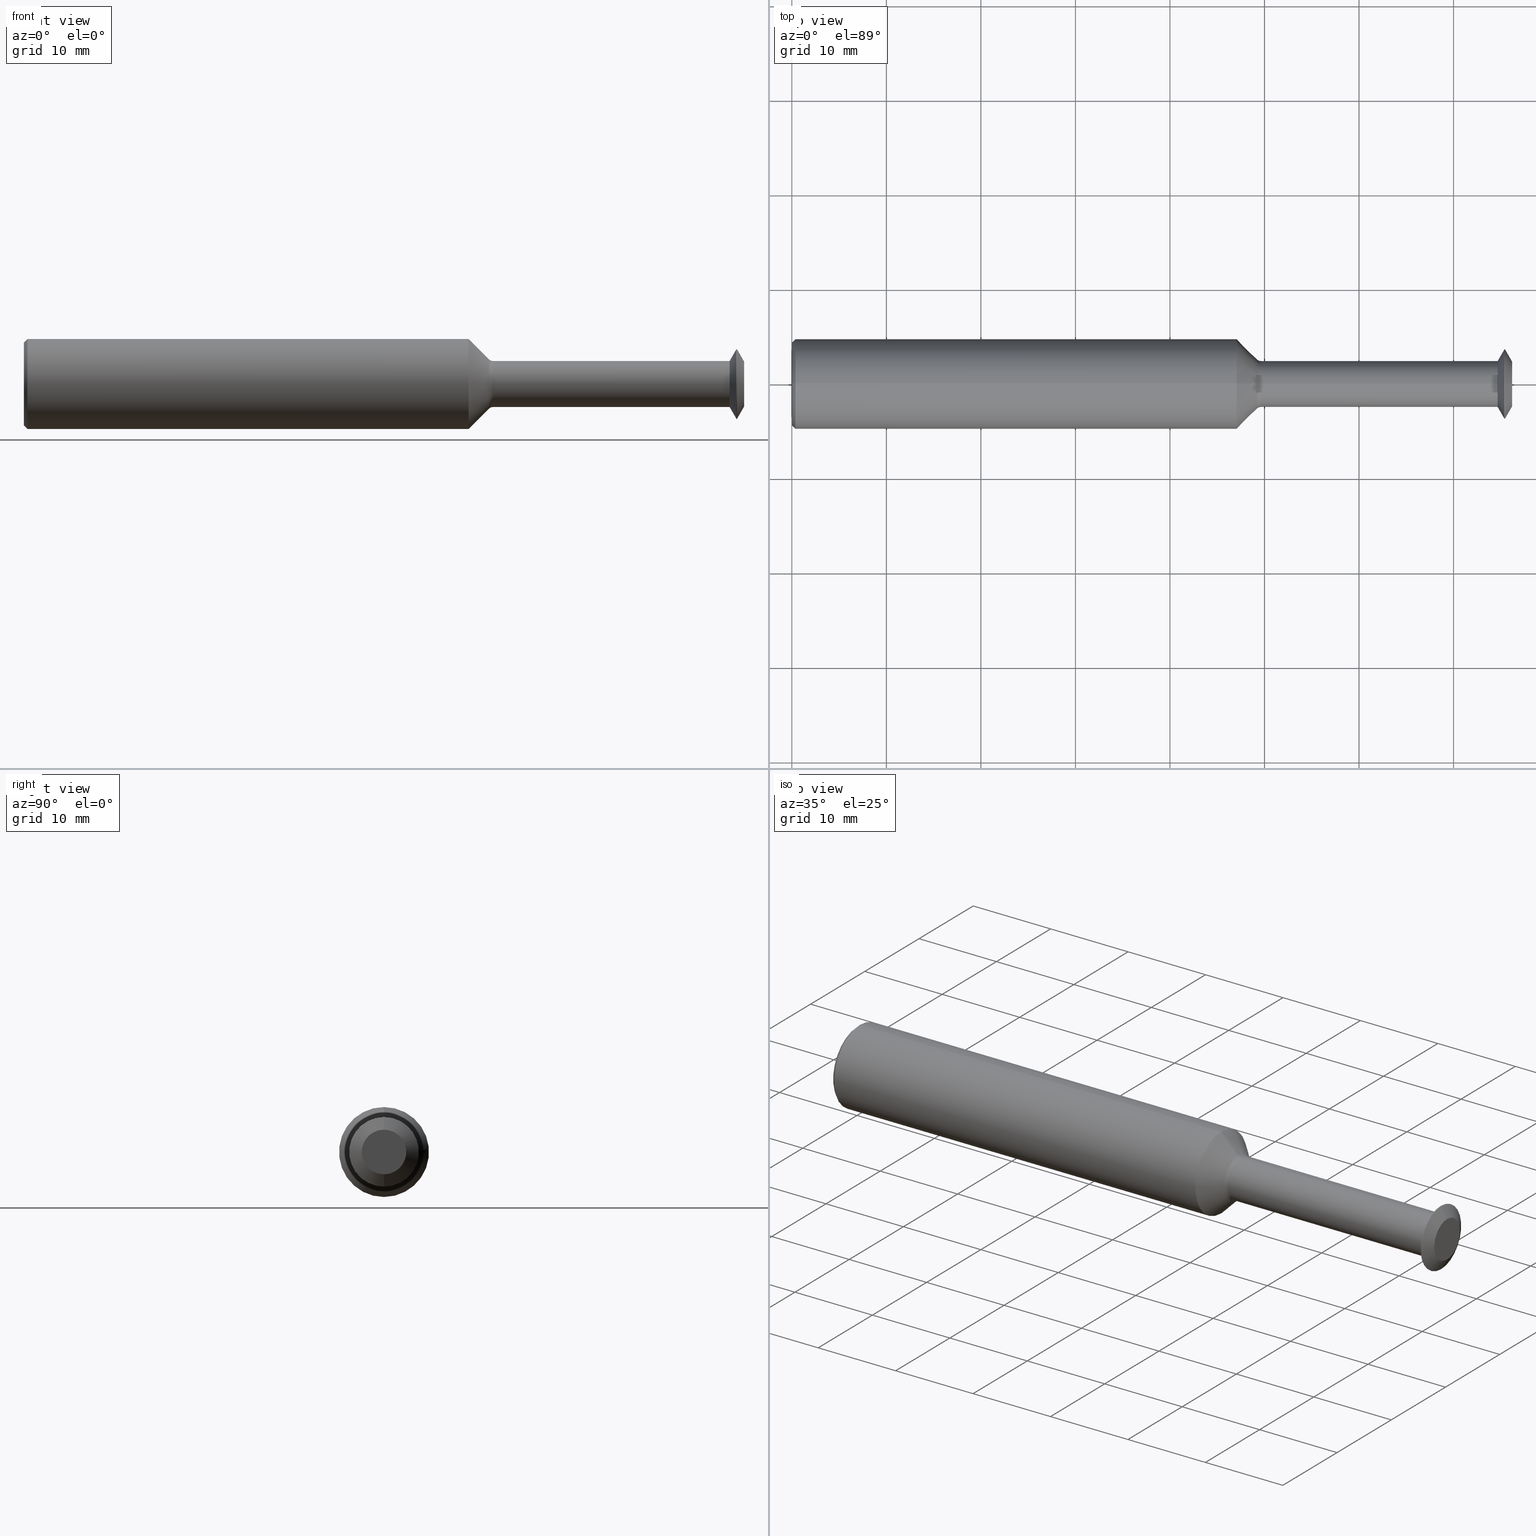
[diagram: canonical four-view strip — front | top / right | iso, engineering-drawing reading convention]
A machine part, canonical four-view strip (front | top / right | iso — engineering-drawing reading convention). The complete STEP part file that produces these views, byte-faithful:
ISO-10303-21;
HEADER;
FILE_DESCRIPTION (( 'STEP AP214' ),
    '1' );
FILE_NAME ('SPTM290L.STEP',
    '2019-04-23T20:26:19',
    ( '' ),
    ( '' ),
    'SwSTEP 2.0',
    'SolidWorks 2018',
    '' );
FILE_SCHEMA (( 'AUTOMOTIVE_DESIGN' ));
ENDSEC;

DATA;
#1 = EDGE_CURVE ( 'NONE', #290, #406, #95, .T. ) ;
#2 = PRESENTATION_STYLE_ASSIGNMENT (( #266 ) ) ;
#3 = CIRCLE ( 'NONE', #486, 0.02500000000000000486 ) ;
#4 =( CONVERSION_BASED_UNIT ( 'INCH', #296 ) LENGTH_UNIT ( ) NAMED_UNIT ( #383 ) );
#5 = DIRECTION ( 'NONE',  ( 1.000000000000000000, 0.0000000000000000000, 0.0000000000000000000 ) ) ;
#6 = CIRCLE ( 'NONE', #171, 0.1873499999999999888 ) ;
#7 = EDGE_CURVE ( 'NONE', #58, #130, #81, .T. ) ;
#8 = EDGE_LOOP ( 'NONE', ( #478, #10, #93, #338 ) ) ;
#9 = DIRECTION ( 'NONE',  ( 0.0000000000000000000, 0.0000000000000000000, -1.000000000000000000 ) ) ;
#10 = ORIENTED_EDGE ( 'NONE', *, *, #246, .T. ) ;
#11 = CARTESIAN_POINT ( 'NONE',  ( 2.967659026713176829, 0.0000000000000000000, 0.0000000000000000000 ) ) ;
#12 = DIRECTION ( 'NONE',  ( 0.0000000000000000000, 0.0000000000000000000, 1.000000000000000000 ) ) ;
#13 = ORIENTED_EDGE ( 'NONE', *, *, #219, .F. ) ;
#14 = CARTESIAN_POINT ( 'NONE',  ( 0.0000000000000000000, 0.0000000000000000000, 0.0000000000000000000 ) ) ;
#15 = FACE_OUTER_BOUND ( 'NONE', #388, .T. ) ;
#16 = CARTESIAN_POINT ( 'NONE',  ( 0.0000000000000000000, 0.0000000000000000000, 0.0000000000000000000 ) ) ;
#17 = AXIS2_PLACEMENT_3D ( 'NONE', #186, #305, #142 ) ;
#18 = DIRECTION ( 'NONE',  ( -1.000000000000000000, -0.0000000000000000000, -0.0000000000000000000 ) ) ;
#19 = DIRECTION ( 'NONE',  ( -1.000000000000000000, -0.0000000000000000000, -0.0000000000000000000 ) ) ;
#20 = CIRCLE ( 'NONE', #155, 0.1449999999999994349 ) ;
#21 = EDGE_CURVE ( 'NONE', #366, #236, #378, .T. ) ;
#22 = CYLINDRICAL_SURFACE ( 'NONE', #281, 0.1449999999999994349 ) ;
#23 = CARTESIAN_POINT ( 'NONE',  ( 0.0000000000000000000, 0.0000000000000000000, 0.0000000000000000000 ) ) ;
#24 = CLOSED_SHELL ( 'NONE', ( #157, #135, #150, #111, #32, #66, #175, #161, #143, #100, #126, #77, #83, #162, #48, #182, #176, #87 ) ) ;
#25 = CARTESIAN_POINT ( 'NONE',  ( 3.000000000000000444, 1.138921523207031801E-17, -0.09299999999999945810 ) ) ;
#26 = ORIENTED_EDGE ( 'NONE', *, *, #432, .T. ) ;
#27 = CARTESIAN_POINT ( 'NONE',  ( 1.954264365772504286, 0.0000000000000000000, 0.09599999999999997424 ) ) ;
#28 = PRESENTATION_LAYER_ASSIGNMENT (  '', '', ( #239 ) ) ;
#29 = VECTOR ( 'NONE', #153, 39.37007874015748143 ) ;
#30 = FACE_OUTER_BOUND ( 'NONE', #343, .T. ) ;
#31 = EDGE_LOOP ( 'NONE', ( #110, #358, #375, #309 ) ) ;
#32 = ADVANCED_FACE ( 'NONE', ( #202 ), #470, .T. ) ;
#33 = AXIS2_PLACEMENT_3D ( 'NONE', #382, #208, #499 ) ;
#34 = DIRECTION ( 'NONE',  ( -1.000000000000000000, -0.0000000000000000000, -0.0000000000000000000 ) ) ;
#35 = PRODUCT_DEFINITION_SHAPE ( 'NONE', 'NONE',  #73 ) ;
#36 = AXIS2_PLACEMENT_3D ( 'NONE', #16, #480, #231 ) ;
#37 = ORIENTED_EDGE ( 'NONE', *, *, #497, .T. ) ;
#38 = EDGE_CURVE ( 'NONE', #389, #290, #107, .T. ) ;
#39 = CIRCLE ( 'NONE', #328, 0.1873499999999999888 ) ;
#40 = VERTEX_POINT ( 'NONE', #170 ) ;
#41 = CARTESIAN_POINT ( 'NONE',  ( 1.936586696242840633, 0.0000000000000000000, 0.0000000000000000000 ) ) ;
#42 = ORIENTED_EDGE ( 'NONE', *, *, #132, .F. ) ;
#43 = LENGTH_MEASURE_WITH_UNIT ( LENGTH_MEASURE( 0.02539999999999999897 ), #282 );
#44 = DIRECTION ( 'NONE',  ( -1.000000000000000000, -0.0000000000000000000, -0.0000000000000000000 ) ) ;
#45 = CONICAL_SURFACE ( 'NONE', #51, 0.09299999999999945810, 1.049815545074589407 ) ;
#46 = AXIS2_PLACEMENT_3D ( 'NONE', #448, #275, #164 ) ;
#47 = VERTEX_POINT ( 'NONE', #353 ) ;
#48 = ADVANCED_FACE ( 'NONE', ( #225 ), #331, .T. ) ;
#49 = CARTESIAN_POINT ( 'NONE',  ( 3.000000000000000444, 0.0000000000000000000, 0.0000000000000000000 ) ) ;
#50 = VERTEX_POINT ( 'NONE', #294 ) ;
#51 = AXIS2_PLACEMENT_3D ( 'NONE', #149, #337, #403 ) ;
#52 = DIRECTION ( 'NONE',  ( 1.000000000000000000, 0.0000000000000000000, 0.0000000000000000000 ) ) ;
#53 = CARTESIAN_POINT ( 'NONE',  ( 0.01499999999999953280, 0.0000000000000000000, 0.1873499999999999888 ) ) ;
#54 = VECTOR ( 'NONE', #377, 39.37007874015748143 ) ;
#55 = DIRECTION ( 'NONE',  ( 0.0000000000000000000, 0.0000000000000000000, 1.000000000000000000 ) ) ;
#56 = PRODUCT_CONTEXT ( 'NONE', #461, 'mechanical' ) ;
#57 = CARTESIAN_POINT ( 'NONE',  ( 1.852559026713177293, 0.0000000000000000000, 0.0000000000000000000 ) ) ;
#58 = VERTEX_POINT ( 'NONE', #492 ) ;
#59 = AXIS2_PLACEMENT_3D ( 'NONE', #324, #166, #364 ) ;
#60 = ORIENTED_EDGE ( 'NONE', *, *, #132, .T. ) ;
#61 = DIRECTION ( 'NONE',  ( 1.000000000000000000, 0.0000000000000000000, 0.0000000000000000000 ) ) ;
#62 = EDGE_CURVE ( 'NONE', #72, #406, #392, .T. ) ;
#63 = CIRCLE ( 'NONE', #91, 0.09299999999999945810 ) ;
#64 = ORIENTED_EDGE ( 'NONE', *, *, #468, .T. ) ;
#65 = EDGE_CURVE ( 'NONE', #270, #390, #258, .T. ) ;
#66 = ADVANCED_FACE ( 'NONE', ( #172 ), #481, .T. ) ;
#67 = DIRECTION ( 'NONE',  ( -1.000000000000000000, -0.0000000000000000000, -0.0000000000000000000 ) ) ;
#68 = VERTEX_POINT ( 'NONE', #348 ) ;
#69 = LINE ( 'NONE', #233, #148 ) ;
#70 = DIRECTION ( 'NONE',  ( 0.7071067811865467956, 8.659560562354943952E-17, 0.7071067811865483499 ) ) ;
#71 = FACE_OUTER_BOUND ( 'NONE', #395, .T. ) ;
#72 = VERTEX_POINT ( 'NONE', #319 ) ;
#73 = PRODUCT_DEFINITION ( 'UNKNOWN', '', #121, #248 ) ;
#74 = DIRECTION ( 'NONE',  ( 0.0000000000000000000, 0.0000000000000000000, 1.000000000000000000 ) ) ;
#75 = ORIENTED_EDGE ( 'NONE', *, *, #271, .F. ) ;
#76 = DIRECTION ( 'NONE',  ( -1.000000000000000000, -0.0000000000000000000, -0.0000000000000000000 ) ) ;
#77 = ADVANCED_FACE ( 'NONE', ( #71 ), #359, .T. ) ;
#78 = CARTESIAN_POINT ( 'NONE',  ( 1.936586696242840633, 0.0000000000000000000, 0.1033223304703363571 ) ) ;
#79 = DIRECTION ( 'NONE',  ( 0.0000000000000000000, 0.0000000000000000000, 1.000000000000000000 ) ) ;
#80 = DIRECTION ( 'NONE',  ( -1.000000000000000000, -0.0000000000000000000, -0.0000000000000000000 ) ) ;
#81 = LINE ( 'NONE', #357, #451 ) ;
#82 = DIRECTION ( 'NONE',  ( 0.0000000000000000000, 0.0000000000000000000, 1.000000000000000000 ) ) ;
#83 = ADVANCED_FACE ( 'NONE', ( #487 ), #268, .T. ) ;
#84 = DIRECTION ( 'NONE',  ( -1.000000000000000000, -0.0000000000000000000, -0.0000000000000000000 ) ) ;
#85 = EDGE_LOOP ( 'NONE', ( #289, #64, #314, #288 ) ) ;
#86 = DIRECTION ( 'NONE',  ( -1.000000000000000000, -0.0000000000000000000, -0.0000000000000000000 ) ) ;
#87 = ADVANCED_FACE ( 'NONE', ( #293 ), #441, .T. ) ;
#88 = CARTESIAN_POINT ( 'NONE',  ( 0.0000000000000000000, 2.202527268266516892E-17, 0.1723500000000004195 ) ) ;
#89 = CARTESIAN_POINT ( 'NONE',  ( 1.936586696242840633, 0.0000000000000000000, 0.1033223304703363571 ) ) ;
#90 = FACE_OUTER_BOUND ( 'NONE', #422, .T. ) ;
#91 = AXIS2_PLACEMENT_3D ( 'NONE', #49, #442, #476 ) ;
#92 = DIRECTION ( 'NONE',  ( 0.0000000000000000000, 0.0000000000000000000, -1.000000000000000000 ) ) ;
#93 = ORIENTED_EDGE ( 'NONE', *, *, #322, .F. ) ;
#94 = DIRECTION ( 'NONE',  ( 0.0000000000000000000, 0.0000000000000000000, 1.000000000000000000 ) ) ;
#95 = LINE ( 'NONE', #252, #416 ) ;
#96 = EDGE_CURVE ( 'NONE', #290, #389, #323, .T. ) ;
#97 = DIRECTION ( 'NONE',  ( 0.0000000000000000000, 0.0000000000000000000, 1.000000000000000000 ) ) ;
#98 = TOROIDAL_SURFACE ( 'NONE', #253, 0.1209999999999999826, 0.02499999999999999792 ) ;
#99 = DIRECTION ( 'NONE',  ( -1.000000000000000000, -0.0000000000000000000, -0.0000000000000000000 ) ) ;
#100 = ADVANCED_FACE ( 'NONE', ( #167 ), #45, .T. ) ;
#101 = CARTESIAN_POINT ( 'NONE',  ( 0.01499999999999953280, 0.0000000000000000000, 0.0000000000000000000 ) ) ;
#102 = CARTESIAN_POINT ( 'NONE',  ( 2.939539648039054764, 0.0000000000000000000, 0.0000000000000000000 ) ) ;
#103 = VERTEX_POINT ( 'NONE', #437 ) ;
#104 = DIRECTION ( 'NONE',  ( -0.4977310399126119722, 1.062174661273176374E-16, -0.8673314314075730724 ) ) ;
#105 = VECTOR ( 'NONE', #119, 39.37007874015748143 ) ;
#106 = AXIS2_PLACEMENT_3D ( 'NONE', #127, #67, #318 ) ;
#107 = CIRCLE ( 'NONE', #493, 0.1723500000000004195 ) ;
#108 = DIRECTION ( 'NONE',  ( 0.0000000000000000000, 0.0000000000000000000, -1.000000000000000000 ) ) ;
#109 = AXIS2_PLACEMENT_3D ( 'NONE', #278, #385, #360 ) ;
#110 = ORIENTED_EDGE ( 'NONE', *, *, #322, .T. ) ;
#111 = ADVANCED_FACE ( 'NONE', ( #397 ), #98, .F. ) ;
#112 = PRODUCT ( 'SPTM290L', 'SPTM290L', '', ( #56 ) ) ;
#113 = ORIENTED_EDGE ( 'NONE', *, *, #326, .T. ) ;
#114 = CARTESIAN_POINT ( 'NONE',  ( 0.0000000000000000000, 0.0000000000000000000, 0.1449999999999994349 ) ) ;
#115 = ORIENTED_EDGE ( 'NONE', *, *, #120, .F. ) ;
#116 = EDGE_CURVE ( 'NONE', #270, #366, #141, .T. ) ;
#117 = ORIENTED_EDGE ( 'NONE', *, *, #65, .T. ) ;
#118 = SURFACE_STYLE_FILL_AREA ( #498 ) ;
#119 = DIRECTION ( 'NONE',  ( -1.000000000000000000, -0.0000000000000000000, -0.0000000000000000000 ) ) ;
#120 = EDGE_CURVE ( 'NONE', #390, #103, #277, .T. ) ;
#121 = PRODUCT_DEFINITION_FORMATION_WITH_SPECIFIED_SOURCE ( 'ANY', '', #112, .NOT_KNOWN. ) ;
#122 = CYLINDRICAL_SURFACE ( 'NONE', #36, 0.1449999999999994349 ) ;
#123 = ORIENTED_EDGE ( 'NONE', *, *, #341, .F. ) ;
#124 = EDGE_CURVE ( 'NONE', #390, #236, #3, .T. ) ;
#125 = VERTEX_POINT ( 'NONE', #410 ) ;
#126 = ADVANCED_FACE ( 'NONE', ( #405 ), #22, .T. ) ;
#127 = CARTESIAN_POINT ( 'NONE',  ( 1.954264365772504286, 0.0000000000000000000, 0.0000000000000000000 ) ) ;
#128 = EDGE_CURVE ( 'NONE', #406, #72, #39, .T. ) ;
#129 = VECTOR ( 'NONE', #86, 39.37007874015748143 ) ;
#130 = VERTEX_POINT ( 'NONE', #455 ) ;
#131 = CARTESIAN_POINT ( 'NONE',  ( 1.954264365772504286, 0.0000000000000000000, 0.1209999999999999826 ) ) ;
#132 = EDGE_CURVE ( 'NONE', #443, #58, #303, .T. ) ;
#133 = ORIENTED_EDGE ( 'NONE', *, *, #159, .F. ) ;
#134 = FILL_AREA_STYLE ('',( #408 ) ) ;
#135 = ADVANCED_FACE ( 'NONE', ( #339 ), #464, .T. ) ;
#136 =( GEOMETRIC_REPRESENTATION_CONTEXT ( 3 ) GLOBAL_UNCERTAINTY_ASSIGNED_CONTEXT ( ( #349 ) ) GLOBAL_UNIT_ASSIGNED_CONTEXT ( ( #197, #187, #272 ) ) REPRESENTATION_CONTEXT ( 'NONE', 'WORKASPACE' ) );
#137 = DIRECTION ( 'NONE',  ( -1.000000000000000000, -0.0000000000000000000, -0.0000000000000000000 ) ) ;
#138 = CARTESIAN_POINT ( 'NONE',  ( 1.936586696242840633, 1.265333612909424414E-17, -0.1033223304703363571 ) ) ;
#139 = DIRECTION ( 'NONE',  ( 0.0000000000000000000, 0.0000000000000000000, 1.000000000000000000 ) ) ;
#140 = CARTESIAN_POINT ( 'NONE',  ( 0.0000000000000000000, 0.0000000000000000000, 0.0000000000000000000 ) ) ;
#141 = CIRCLE ( 'NONE', #373, 0.02500000000000000486 ) ;
#142 = DIRECTION ( 'NONE',  ( 0.0000000000000000000, 0.0000000000000000000, 1.000000000000000000 ) ) ;
#143 = ADVANCED_FACE ( 'NONE', ( #158 ), #195, .F. ) ;
#144 = ORIENTED_EDGE ( 'NONE', *, *, #65, .F. ) ;
#145 = CARTESIAN_POINT ( 'NONE',  ( 3.000000000000000444, 0.0000000000000000000, 0.09299999999999945810 ) ) ;
#146 = ORIENTED_EDGE ( 'NONE', *, *, #7, .F. ) ;
#147 = AXIS2_PLACEMENT_3D ( 'NONE', #262, #244, #235 ) ;
#148 = VECTOR ( 'NONE', #193, 39.37007874015748143 ) ;
#149 = CARTESIAN_POINT ( 'NONE',  ( 3.000000000000000444, 0.0000000000000000000, 0.0000000000000000000 ) ) ;
#150 = ADVANCED_FACE ( 'NONE', ( #90 ), #247, .T. ) ;
#151 = AXIS2_PLACEMENT_3D ( 'NONE', #491, #80, #97 ) ;
#152 = DIRECTION ( 'NONE',  ( -1.000000000000000000, -0.0000000000000000000, -0.0000000000000000000 ) ) ;
#153 = DIRECTION ( 'NONE',  ( 0.7071067811865467956, 0.0000000000000000000, -0.7071067811865483499 ) ) ;
#154 = ORIENTED_EDGE ( 'NONE', *, *, #179, .T. ) ;
#155 = AXIS2_PLACEMENT_3D ( 'NONE', #308, #297, #139 ) ;
#156 = LINE ( 'NONE', #114, #274 ) ;
#157 = ADVANCED_FACE ( 'NONE', ( #356 ), #209, .T. ) ;
#158 = FACE_OUTER_BOUND ( 'NONE', #484, .T. ) ;
#159 = EDGE_CURVE ( 'NONE', #270, #68, #419, .T. ) ;
#160 = ORIENTED_EDGE ( 'NONE', *, *, #62, .F. ) ;
#161 = ADVANCED_FACE ( 'NONE', ( #191 ), #206, .T. ) ;
#162 = ADVANCED_FACE ( 'NONE', ( #15 ), #327, .F. ) ;
#163 = EDGE_LOOP ( 'NONE', ( #75, #228, #368, #123 ) ) ;
#164 = DIRECTION ( 'NONE',  ( 0.0000000000000000000, 0.0000000000000000000, 1.000000000000000000 ) ) ;
#165 = LENGTH_MEASURE_WITH_UNIT ( LENGTH_MEASURE( 0.02539999999999999897 ), #204 );
#166 = DIRECTION ( 'NONE',  ( 1.000000000000000000, 0.0000000000000000000, 0.0000000000000000000 ) ) ;
#167 = FACE_OUTER_BOUND ( 'NONE', #425, .T. ) ;
#168 = ORIENTED_EDGE ( 'NONE', *, *, #7, .T. ) ;
#169 = MECHANICAL_DESIGN_GEOMETRIC_PRESENTATION_REPRESENTATION (  '', ( #384 ), #215 ) ;
#170 = CARTESIAN_POINT ( 'NONE',  ( 2.970159026713176775, 0.0000000000000000000, 0.1449999999999994349 ) ) ;
#171 = AXIS2_PLACEMENT_3D ( 'NONE', #57, #234, #414 ) ;
#172 = FACE_OUTER_BOUND ( 'NONE', #482, .T. ) ;
#173 = ORIENTED_EDGE ( 'NONE', *, *, #96, .T. ) ;
#174 = CARTESIAN_POINT ( 'NONE',  ( 0.0000000000000000000, 1.175660927181458787E-17, -0.09599999999999997424 ) ) ;
#175 = ADVANCED_FACE ( 'NONE', ( #181 ), #122, .T. ) ;
#176 = ADVANCED_FACE ( 'NONE', ( #30 ), #227, .F. ) ;
#177 = SURFACE_STYLE_FILL_AREA ( #134 ) ;
#178 = DIRECTION ( 'NONE',  ( 0.0000000000000000000, -1.000000000000000000, 0.0000000000000000000 ) ) ;
#179 = EDGE_CURVE ( 'NONE', #103, #406, #315, .T. ) ;
#180 = DIRECTION ( 'NONE',  ( -1.000000000000000000, -0.0000000000000000000, -0.0000000000000000000 ) ) ;
#181 = FACE_OUTER_BOUND ( 'NONE', #31, .T. ) ;
#182 = ADVANCED_FACE ( 'NONE', ( #287 ), #413, .T. ) ;
#183 = CARTESIAN_POINT ( 'NONE',  ( 0.0000000000000000000, 0.0000000000000000000, 0.0000000000000000000 ) ) ;
#184 = AXIS2_PLACEMENT_3D ( 'NONE', #224, #230, #283 ) ;
#185 =( NAMED_UNIT ( * ) PLANE_ANGLE_UNIT ( ) SI_UNIT ( $, .RADIAN. ) );
#186 = CARTESIAN_POINT ( 'NONE',  ( 3.000000000000000444, 0.0000000000000000000, 0.0000000000000000000 ) ) ;
#187 =( NAMED_UNIT ( * ) PLANE_ANGLE_UNIT ( ) SI_UNIT ( $, .RADIAN. ) );
#188 = DIRECTION ( 'NONE',  ( -0.7071067811865454633, 0.0000000000000000000, 0.7071067811865495711 ) ) ;
#189 = EDGE_CURVE ( 'NONE', #103, #68, #6, .T. ) ;
#190 = DIRECTION ( 'NONE',  ( -0.4977310399126119722, 0.0000000000000000000, 0.8673314314075730724 ) ) ;
#191 = FACE_OUTER_BOUND ( 'NONE', #8, .T. ) ;
#192 = ORIENTED_EDGE ( 'NONE', *, *, #432, .F. ) ;
#193 = DIRECTION ( 'NONE',  ( 0.4977310399126153029, 1.062174661273174402E-16, 0.8673314314075712961 ) ) ;
#194 = ORIENTED_EDGE ( 'NONE', *, *, #196, .T. ) ;
#195 = PLANE ( 'NONE',  #312 ) ;
#196 = EDGE_CURVE ( 'NONE', #390, #270, #214, .T. ) ;
#197 =( CONVERSION_BASED_UNIT ( 'INCH', #165 ) LENGTH_UNIT ( ) NAMED_UNIT ( #447 ) );
#198 = ORIENTED_EDGE ( 'NONE', *, *, #120, .T. ) ;
#199 = CARTESIAN_POINT ( 'NONE',  ( 0.0000000000000000000, 0.0000000000000000000, 0.0000000000000000000 ) ) ;
#200 = CARTESIAN_POINT ( 'NONE',  ( 0.0000000000000000000, 0.0000000000000000000, 0.0000000000000000000 ) ) ;
#201 = UNCERTAINTY_MEASURE_WITH_UNIT (LENGTH_MEASURE( 1.000000000000000082E-05 ), #4, 'distance_accuracy_value', 'NONE');
#202 = FACE_OUTER_BOUND ( 'NONE', #500, .T. ) ;
#203 = CARTESIAN_POINT ( 'NONE',  ( 2.939539648039054764, 1.475699392972557039E-17, 0.09599999999999997424 ) ) ;
#204 =( LENGTH_UNIT ( ) NAMED_UNIT ( * ) SI_UNIT ( $, .METRE. ) );
#205 = AXIS2_PLACEMENT_3D ( 'NONE', #140, #44, #485 ) ;
#206 = CONICAL_SURFACE ( 'NONE', #17, 0.09299999999999945810, 1.049815545074589407 ) ;
#207 = LINE ( 'NONE', #174, #335 ) ;
#208 = DIRECTION ( 'NONE',  ( -1.000000000000000000, -0.0000000000000000000, -0.0000000000000000000 ) ) ;
#209 = CONICAL_SURFACE ( 'NONE', #256, 0.1723500000000004195, 0.7853981633974492782 ) ;
#210 = AXIS2_PLACEMENT_3D ( 'NONE', #371, #180, #12 ) ;
#211 = EDGE_LOOP ( 'NONE', ( #495, #259, #154, #399 ) ) ;
#212 = CARTESIAN_POINT ( 'NONE',  ( 0.0000000000000000000, 0.0000000000000000000, 0.0000000000000000000 ) ) ;
#213 = ORIENTED_EDGE ( 'NONE', *, *, #1, .F. ) ;
#214 = CIRCLE ( 'NONE', #210, 0.1033223304703363571 ) ;
#215 =( GEOMETRIC_REPRESENTATION_CONTEXT ( 3 ) GLOBAL_UNCERTAINTY_ASSIGNED_CONTEXT ( ( #306 ) ) GLOBAL_UNIT_ASSIGNED_CONTEXT ( ( #299, #185, #238 ) ) REPRESENTATION_CONTEXT ( 'NONE', 'WORKASPACE' ) );
#216 = CARTESIAN_POINT ( 'NONE',  ( 0.0000000000000000000, 2.294375778202566330E-17, -0.1873499999999999888 ) ) ;
#217 = EDGE_CURVE ( 'NONE', #443, #236, #365, .T. ) ;
#218 = ORIENTED_EDGE ( 'NONE', *, *, #21, .F. ) ;
#219 = EDGE_CURVE ( 'NONE', #47, #501, #63, .T. ) ;
#220 = DIRECTION ( 'NONE',  ( -1.000000000000000000, -0.0000000000000000000, -0.0000000000000000000 ) ) ;
#221 = ORIENTED_EDGE ( 'NONE', *, *, #189, .F. ) ;
#222 = CIRCLE ( 'NONE', #151, 0.1873499999999999888 ) ;
#223 = DIRECTION ( 'NONE',  ( 0.0000000000000000000, 0.0000000000000000000, -1.000000000000000000 ) ) ;
#224 = CARTESIAN_POINT ( 'NONE',  ( 3.000000000000000444, 0.0000000000000000000, 0.0000000000000000000 ) ) ;
#225 = FACE_OUTER_BOUND ( 'NONE', #466, .T. ) ;
#226 = APPLICATION_PROTOCOL_DEFINITION ( 'draft international standard', 'automotive_design', 1998, #461 ) ;
#227 = PLANE ( 'NONE',  #463 ) ;
#228 = ORIENTED_EDGE ( 'NONE', *, *, #387, .T. ) ;
#229 = EDGE_CURVE ( 'NONE', #389, #72, #298, .T. ) ;
#230 = DIRECTION ( 'NONE',  ( -1.000000000000000000, -0.0000000000000000000, -0.0000000000000000000 ) ) ;
#231 = DIRECTION ( 'NONE',  ( 0.0000000000000000000, 0.0000000000000000000, 1.000000000000000000 ) ) ;
#232 = CARTESIAN_POINT ( 'NONE',  ( 2.967659026713176829, 0.0000000000000000000, 0.0000000000000000000 ) ) ;
#233 = CARTESIAN_POINT ( 'NONE',  ( 2.967659026713176829, 1.775737858763655137E-17, 0.1449999999999994349 ) ) ;
#234 = DIRECTION ( 'NONE',  ( -1.000000000000000000, -0.0000000000000000000, -0.0000000000000000000 ) ) ;
#235 = DIRECTION ( 'NONE',  ( 0.0000000000000000000, 0.0000000000000000000, 1.000000000000000000 ) ) ;
#236 = VERTEX_POINT ( 'NONE', #27 ) ;
#237 = DIMENSIONAL_EXPONENTS ( 1.000000000000000000, 0.0000000000000000000, 0.0000000000000000000, 0.0000000000000000000, 0.0000000000000000000, 0.0000000000000000000, 0.0000000000000000000 ) ;
#238 =( NAMED_UNIT ( * ) SI_UNIT ( $, .STERADIAN. ) SOLID_ANGLE_UNIT ( ) );
#239 = STYLED_ITEM ( 'NONE', ( #329 ), #250 ) ;
#240 = DIRECTION ( 'NONE',  ( -1.000000000000000000, -0.0000000000000000000, -0.0000000000000000000 ) ) ;
#241 = DIRECTION ( 'NONE',  ( 0.0000000000000000000, 0.0000000000000000000, -1.000000000000000000 ) ) ;
#242 = ORIENTED_EDGE ( 'NONE', *, *, #457, .F. ) ;
#243 = DIRECTION ( 'NONE',  ( 0.0000000000000000000, 0.0000000000000000000, 1.000000000000000000 ) ) ;
#244 = DIRECTION ( 'NONE',  ( -1.000000000000000000, -0.0000000000000000000, -0.0000000000000000000 ) ) ;
#245 = DIRECTION ( 'NONE',  ( 0.0000000000000000000, 0.0000000000000000000, 1.000000000000000000 ) ) ;
#246 = EDGE_CURVE ( 'NONE', #501, #50, #418, .T. ) ;
#247 = CONICAL_SURFACE ( 'NONE', #352, 0.1033223304703363571, 0.7853981633974511656 ) ;
#248 = PRODUCT_DEFINITION_CONTEXT ( 'detailed design', #475, 'design' ) ;
#249 = DIRECTION ( 'NONE',  ( 0.0000000000000000000, 0.0000000000000000000, 1.000000000000000000 ) ) ;
#250 = ADVANCED_BREP_SHAPE_REPRESENTATION ( 'SPTM290L', ( #415, #380 ), #136 ) ;
#251 = CIRCLE ( 'NONE', #276, 0.1449999999999994349 ) ;
#252 = CARTESIAN_POINT ( 'NONE',  ( 0.0000000000000000000, 2.110678758330468070E-17, 0.1723500000000004195 ) ) ;
#253 = AXIS2_PLACEMENT_3D ( 'NONE', #433, #152, #243 ) ;
#254 = CARTESIAN_POINT ( 'NONE',  ( 0.0000000000000000000, 0.0000000000000000000, -0.1723500000000004195 ) ) ;
#255 = CARTESIAN_POINT ( 'NONE',  ( 1.936586696242840633, 0.0000000000000000000, 0.0000000000000000000 ) ) ;
#256 = AXIS2_PLACEMENT_3D ( 'NONE', #14, #61, #439 ) ;
#257 = SURFACE_SIDE_STYLE ('',( #177 ) ) ;
#258 = CIRCLE ( 'NONE', #292, 0.1033223304703363571 ) ;
#259 = ORIENTED_EDGE ( 'NONE', *, *, #420, .T. ) ;
#260 = CARTESIAN_POINT ( 'NONE',  ( 3.000000000000000444, 0.09299999999999945810, 0.0000000000000000000 ) ) ;
#261 = APPLICATION_PROTOCOL_DEFINITION ( 'draft international standard', 'automotive_design', 1998, #475 ) ;
#262 = CARTESIAN_POINT ( 'NONE',  ( 1.954264365772504286, 0.0000000000000000000, 0.0000000000000000000 ) ) ;
#263 = MECHANICAL_DESIGN_GEOMETRIC_PRESENTATION_REPRESENTATION (  '', ( #239 ), #295 ) ;
#264 = DIRECTION ( 'NONE',  ( -0.0000000000000000000, 0.0000000000000000000, 1.000000000000000000 ) ) ;
#265 = COLOUR_RGB ( '',0.7529411764705882248, 0.7529411764705882248, 0.7529411764705882248 ) ;
#266 = SURFACE_STYLE_USAGE ( .BOTH. , #257 ) ;
#267 = DIRECTION ( 'NONE',  ( -1.000000000000000000, -0.0000000000000000000, -0.0000000000000000000 ) ) ;
#268 = CYLINDRICAL_SURFACE ( 'NONE', #427, 0.09599999999999997424 ) ;
#269 = CARTESIAN_POINT ( 'NONE',  ( 0.0000000000000000000, 0.0000000000000000000, 0.0000000000000000000 ) ) ;
#270 = VERTEX_POINT ( 'NONE', #138 ) ;
#271 = EDGE_CURVE ( 'NONE', #50, #130, #467, .T. ) ;
#272 =( NAMED_UNIT ( * ) SI_UNIT ( $, .STERADIAN. ) SOLID_ANGLE_UNIT ( ) );
#273 = ORIENTED_EDGE ( 'NONE', *, *, #116, .T. ) ;
#274 = VECTOR ( 'NONE', #18, 39.37007874015748143 ) ;
#275 = DIRECTION ( 'NONE',  ( -1.000000000000000000, -0.0000000000000000000, -0.0000000000000000000 ) ) ;
#276 = AXIS2_PLACEMENT_3D ( 'NONE', #11, #488, #402 ) ;
#277 = LINE ( 'NONE', #89, #311 ) ;
#278 = CARTESIAN_POINT ( 'NONE',  ( 2.967659026713176829, 0.0000000000000000000, 0.0000000000000000000 ) ) ;
#279 = ORIENTED_EDGE ( 'NONE', *, *, #116, .F. ) ;
#280 = DIRECTION ( 'NONE',  ( 0.0000000000000000000, 0.0000000000000000000, 1.000000000000000000 ) ) ;
#281 = AXIS2_PLACEMENT_3D ( 'NONE', #23, #267, #94 ) ;
#282 =( LENGTH_UNIT ( ) NAMED_UNIT ( * ) SI_UNIT ( $, .METRE. ) );
#283 = DIRECTION ( 'NONE',  ( 0.0000000000000000000, 0.0000000000000000000, 1.000000000000000000 ) ) ;
#284 = CARTESIAN_POINT ( 'NONE',  ( 0.0000000000000000000, 0.0000000000000000000, 0.0000000000000000000 ) ) ;
#285 = DIRECTION ( 'NONE',  ( -1.000000000000000000, -0.0000000000000000000, -0.0000000000000000000 ) ) ;
#286 = AXIS2_PLACEMENT_3D ( 'NONE', #102, #99, #74 ) ;
#287 = FACE_OUTER_BOUND ( 'NONE', #211, .T. ) ;
#288 = ORIENTED_EDGE ( 'NONE', *, *, #179, .F. ) ;
#289 = ORIENTED_EDGE ( 'NONE', *, *, #189, .T. ) ;
#290 = VERTEX_POINT ( 'NONE', #88 ) ;
#291 = FILL_AREA_STYLE_COLOUR ( '', #265 ) ;
#292 = AXIS2_PLACEMENT_3D ( 'NONE', #255, #76, #82 ) ;
#293 = FACE_OUTER_BOUND ( 'NONE', #374, .T. ) ;
#294 = CARTESIAN_POINT ( 'NONE',  ( 2.970159026713176775, 1.775737858763655137E-17, -0.1449999999999994349 ) ) ;
#295 =( GEOMETRIC_REPRESENTATION_CONTEXT ( 3 ) GLOBAL_UNCERTAINTY_ASSIGNED_CONTEXT ( ( #201 ) ) GLOBAL_UNIT_ASSIGNED_CONTEXT ( ( #4, #350, #355 ) ) REPRESENTATION_CONTEXT ( 'NONE', 'WORKASPACE' ) );
#296 = LENGTH_MEASURE_WITH_UNIT ( LENGTH_MEASURE( 0.02539999999999999897 ), #361 );
#297 = DIRECTION ( 'NONE',  ( -1.000000000000000000, -0.0000000000000000000, -0.0000000000000000000 ) ) ;
#298 = LINE ( 'NONE', #317, #29 ) ;
#299 =( CONVERSION_BASED_UNIT ( 'INCH', #43 ) LENGTH_UNIT ( ) NAMED_UNIT ( #237 ) );
#300 = ORIENTED_EDGE ( 'NONE', *, *, #217, .F. ) ;
#301 = EDGE_CURVE ( 'NONE', #40, #125, #156, .T. ) ;
#302 = CARTESIAN_POINT ( 'NONE',  ( 0.0000000000000000000, 0.0000000000000000000, 0.1873499999999999888 ) ) ;
#303 = CIRCLE ( 'NONE', #354, 0.09599999999999997424 ) ;
#304 = AXIS2_PLACEMENT_3D ( 'NONE', #183, #5, #92 ) ;
#305 = DIRECTION ( 'NONE',  ( -1.000000000000000000, -0.0000000000000000000, -0.0000000000000000000 ) ) ;
#306 = UNCERTAINTY_MEASURE_WITH_UNIT (LENGTH_MEASURE( 1.000000000000000082E-05 ), #299, 'distance_accuracy_value', 'NONE');
#307 = DIRECTION ( 'NONE',  ( 0.0000000000000000000, 0.0000000000000000000, 1.000000000000000000 ) ) ;
#308 = CARTESIAN_POINT ( 'NONE',  ( 2.970159026713176775, 0.0000000000000000000, 0.0000000000000000000 ) ) ;
#309 = ORIENTED_EDGE ( 'NONE', *, *, #301, .F. ) ;
#310 = CARTESIAN_POINT ( 'NONE',  ( 2.970159026713176775, 0.0000000000000000000, 0.0000000000000000000 ) ) ;
#311 = VECTOR ( 'NONE', #188, 39.37007874015748143 ) ;
#312 = AXIS2_PLACEMENT_3D ( 'NONE', #260, #411, #264 ) ;
#313 = CARTESIAN_POINT ( 'NONE',  ( 1.954264365772504286, 0.0000000000000000000, 0.0000000000000000000 ) ) ;
#314 = ORIENTED_EDGE ( 'NONE', *, *, #62, .T. ) ;
#315 = LINE ( 'NONE', #302, #477 ) ;
#316 = CARTESIAN_POINT ( 'NONE',  ( 0.0000000000000000000, 1.775737858763655137E-17, -0.1449999999999994349 ) ) ;
#317 = CARTESIAN_POINT ( 'NONE',  ( 0.0000000000000000000, 0.0000000000000000000, -0.1723500000000004195 ) ) ;
#318 = DIRECTION ( 'NONE',  ( 0.0000000000000000000, 0.0000000000000000000, 1.000000000000000000 ) ) ;
#319 = CARTESIAN_POINT ( 'NONE',  ( 0.01499999999999953280, 2.294375778202566330E-17, -0.1873499999999999888 ) ) ;
#320 = ORIENTED_EDGE ( 'NONE', *, *, #128, .F. ) ;
#321 = VECTOR ( 'NONE', #190, 39.37007874015748854 ) ;
#322 = EDGE_CURVE ( 'NONE', #40, #50, #446, .T. ) ;
#323 = CIRCLE ( 'NONE', #423, 0.1723500000000004195 ) ;
#324 = CARTESIAN_POINT ( 'NONE',  ( 0.01499999999999953280, 0.0000000000000000000, 0.0000000000000000000 ) ) ;
#325 = CIRCLE ( 'NONE', #286, 0.09599999999999997424 ) ;
#326 = EDGE_CURVE ( 'NONE', #443, #125, #69, .T. ) ;
#327 = TOROIDAL_SURFACE ( 'NONE', #394, 0.1209999999999999826, 0.02499999999999999792 ) ;
#328 = AXIS2_PLACEMENT_3D ( 'NONE', #101, #435, #108 ) ;
#329 = PRESENTATION_STYLE_ASSIGNMENT (( #362 ) ) ;
#330 = CIRCLE ( 'NONE', #184, 0.09299999999999945810 ) ;
#331 = CONICAL_SURFACE ( 'NONE', #33, 0.1033223304703363571, 0.7853981633974511656 ) ;
#332 = DIRECTION ( 'NONE',  ( 0.0000000000000000000, 0.0000000000000000000, 1.000000000000000000 ) ) ;
#333 = ORIENTED_EDGE ( 'NONE', *, *, #38, .T. ) ;
#334 = EDGE_LOOP ( 'NONE', ( #398, #401, #160, #434 ) ) ;
#335 = VECTOR ( 'NONE', #240, 39.37007874015748143 ) ;
#336 = DIRECTION ( 'NONE',  ( 1.000000000000000000, 0.0000000000000000000, 0.0000000000000000000 ) ) ;
#337 = DIRECTION ( 'NONE',  ( -1.000000000000000000, -0.0000000000000000000, -0.0000000000000000000 ) ) ;
#338 = ORIENTED_EDGE ( 'NONE', *, *, #436, .F. ) ;
#339 = FACE_OUTER_BOUND ( 'NONE', #85, .T. ) ;
#340 = DIRECTION ( 'NONE',  ( 1.000000000000000000, 0.0000000000000000000, 0.0000000000000000000 ) ) ;
#341 = EDGE_CURVE ( 'NONE', #130, #125, #251, .T. ) ;
#342 = ORIENTED_EDGE ( 'NONE', *, *, #326, .F. ) ;
#343 = EDGE_LOOP ( 'NONE', ( #333, #173 ) ) ;
#344 = ORIENTED_EDGE ( 'NONE', *, *, #124, .F. ) ;
#345 = DIRECTION ( 'NONE',  ( 0.0000000000000000000, 0.0000000000000000000, -1.000000000000000000 ) ) ;
#346 = LINE ( 'NONE', #216, #438 ) ;
#347 = CARTESIAN_POINT ( 'NONE',  ( 0.0000000000000000000, 0.0000000000000000000, 0.0000000000000000000 ) ) ;
#348 = CARTESIAN_POINT ( 'NONE',  ( 1.852559026713177293, 2.294375778202565714E-17, -0.1873499999999999888 ) ) ;
#349 = UNCERTAINTY_MEASURE_WITH_UNIT (LENGTH_MEASURE( 1.000000000000000082E-05 ), #197, 'distance_accuracy_value', 'NONE');
#350 =( NAMED_UNIT ( * ) PLANE_ANGLE_UNIT ( ) SI_UNIT ( $, .RADIAN. ) );
#351 = ORIENTED_EDGE ( 'NONE', *, *, #38, .F. ) ;
#352 = AXIS2_PLACEMENT_3D ( 'NONE', #41, #285, #445 ) ;
#353 = CARTESIAN_POINT ( 'NONE',  ( 3.000000000000000444, 0.0000000000000000000, 0.09299999999999945810 ) ) ;
#354 = AXIS2_PLACEMENT_3D ( 'NONE', #376, #469, #332 ) ;
#355 =( NAMED_UNIT ( * ) SI_UNIT ( $, .STERADIAN. ) SOLID_ANGLE_UNIT ( ) );
#356 = FACE_OUTER_BOUND ( 'NONE', #334, .T. ) ;
#357 = CARTESIAN_POINT ( 'NONE',  ( 2.967659026713176829, 0.0000000000000000000, -0.1449999999999994349 ) ) ;
#358 = ORIENTED_EDGE ( 'NONE', *, *, #271, .T. ) ;
#359 = CONICAL_SURFACE ( 'NONE', #440, 0.1449999999999994349, 1.049815545074585632 ) ;
#360 = DIRECTION ( 'NONE',  ( 0.0000000000000000000, 0.0000000000000000000, -1.000000000000000000 ) ) ;
#361 =( LENGTH_UNIT ( ) NAMED_UNIT ( * ) SI_UNIT ( $, .METRE. ) );
#362 = SURFACE_STYLE_USAGE ( .BOTH. , #474 ) ;
#363 = CARTESIAN_POINT ( 'NONE',  ( 1.954264365772504286, 1.175660927181458787E-17, -0.09599999999999997424 ) ) ;
#364 = DIRECTION ( 'NONE',  ( 0.0000000000000000000, 0.0000000000000000000, -1.000000000000000000 ) ) ;
#365 = LINE ( 'NONE', #471, #129 ) ;
#366 = VERTEX_POINT ( 'NONE', #363 ) ;
#367 = EDGE_CURVE ( 'NONE', #58, #443, #325, .T. ) ;
#368 = ORIENTED_EDGE ( 'NONE', *, *, #301, .T. ) ;
#369 = CARTESIAN_POINT ( 'NONE',  ( 3.000000000000000444, 1.457329690985343700E-17, -0.09299999999999945810 ) ) ;
#370 = DIRECTION ( 'NONE',  ( -1.000000000000000000, -0.0000000000000000000, -0.0000000000000000000 ) ) ;
#371 = CARTESIAN_POINT ( 'NONE',  ( 1.936586696242840633, 0.0000000000000000000, 0.0000000000000000000 ) ) ;
#372 = DIRECTION ( 'NONE',  ( -0.0000000000000000000, 1.000000000000000000, 1.224646799147353207E-16 ) ) ;
#373 = AXIS2_PLACEMENT_3D ( 'NONE', #449, #372, #379 ) ;
#374 = EDGE_LOOP ( 'NONE', ( #213, #351, #452, #320 ) ) ;
#375 = ORIENTED_EDGE ( 'NONE', *, *, #497, .F. ) ;
#376 = CARTESIAN_POINT ( 'NONE',  ( 2.939539648039054764, 0.0000000000000000000, 0.0000000000000000000 ) ) ;
#377 = DIRECTION ( 'NONE',  ( -0.7071067811865454633, 8.659560562354957510E-17, -0.7071067811865495711 ) ) ;
#378 = CIRCLE ( 'NONE', #106, 0.09599999999999997424 ) ;
#379 = DIRECTION ( 'NONE',  ( 0.0000000000000000000, -1.224646799147353454E-16, 1.000000000000000000 ) ) ;
#380 = AXIS2_PLACEMENT_3D ( 'NONE', #347, #307, #52 ) ;
#381 = DIRECTION ( 'NONE',  ( -1.000000000000000000, -0.0000000000000000000, -0.0000000000000000000 ) ) ;
#382 = CARTESIAN_POINT ( 'NONE',  ( 1.936586696242840633, 0.0000000000000000000, 0.0000000000000000000 ) ) ;
#383 = DIMENSIONAL_EXPONENTS ( 1.000000000000000000, 0.0000000000000000000, 0.0000000000000000000, 0.0000000000000000000, 0.0000000000000000000, 0.0000000000000000000, 0.0000000000000000000 ) ;
#384 = STYLED_ITEM ( 'NONE', ( #2 ), #415 ) ;
#385 = DIRECTION ( 'NONE',  ( 1.000000000000000000, 0.0000000000000000000, 0.0000000000000000000 ) ) ;
#386 = ORIENTED_EDGE ( 'NONE', *, *, #412, .F. ) ;
#387 = EDGE_CURVE ( 'NONE', #50, #40, #20, .T. ) ;
#388 = EDGE_LOOP ( 'NONE', ( #279, #460, #428, #429 ) ) ;
#389 = VERTEX_POINT ( 'NONE', #254 ) ;
#390 = VERTEX_POINT ( 'NONE', #78 ) ;
#391 = AXIS2_PLACEMENT_3D ( 'NONE', #200, #381, #79 ) ;
#392 = CIRCLE ( 'NONE', #59, 0.1873499999999999888 ) ;
#393 = EDGE_LOOP ( 'NONE', ( #144, #273, #473, #344 ) ) ;
#394 = AXIS2_PLACEMENT_3D ( 'NONE', #313, #19, #55 ) ;
#395 = EDGE_LOOP ( 'NONE', ( #342, #409, #168, #430 ) ) ;
#396 = DIRECTION ( 'NONE',  ( -1.000000000000000000, -0.0000000000000000000, -0.0000000000000000000 ) ) ;
#397 = FACE_OUTER_BOUND ( 'NONE', #393, .T. ) ;
#398 = ORIENTED_EDGE ( 'NONE', *, *, #96, .F. ) ;
#399 = ORIENTED_EDGE ( 'NONE', *, *, #128, .T. ) ;
#400 = CARTESIAN_POINT ( 'NONE',  ( 1.936586696242840633, 1.265333612909424568E-17, -0.1033223304703363571 ) ) ;
#401 = ORIENTED_EDGE ( 'NONE', *, *, #1, .T. ) ;
#402 = DIRECTION ( 'NONE',  ( 0.0000000000000000000, 0.0000000000000000000, 1.000000000000000000 ) ) ;
#403 = DIRECTION ( 'NONE',  ( 0.0000000000000000000, 0.0000000000000000000, 1.000000000000000000 ) ) ;
#404 = PRESENTATION_LAYER_ASSIGNMENT (  '', '', ( #384 ) ) ;
#405 = FACE_OUTER_BOUND ( 'NONE', #163, .T. ) ;
#406 = VERTEX_POINT ( 'NONE', #53 ) ;
#407 = CARTESIAN_POINT ( 'NONE',  ( 0.0000000000000000000, 0.0000000000000000000, 0.0000000000000000000 ) ) ;
#408 = FILL_AREA_STYLE_COLOUR ( '', #496 ) ;
#409 = ORIENTED_EDGE ( 'NONE', *, *, #367, .F. ) ;
#410 = CARTESIAN_POINT ( 'NONE',  ( 2.967659026713176829, 0.0000000000000000000, 0.1449999999999994349 ) ) ;
#411 = DIRECTION ( 'NONE',  ( -1.000000000000000000, 0.0000000000000000000, -0.0000000000000000000 ) ) ;
#412 = EDGE_CURVE ( 'NONE', #236, #366, #454, .T. ) ;
#413 = CYLINDRICAL_SURFACE ( 'NONE', #205, 0.1873499999999999888 ) ;
#414 = DIRECTION ( 'NONE',  ( 0.0000000000000000000, 0.0000000000000000000, 1.000000000000000000 ) ) ;
#415 = MANIFOLD_SOLID_BREP ( '61447B45-A3A1-4dff-9FFB-A7F38488AE98-GAAFaceID9', #24 ) ;
#416 = VECTOR ( 'NONE', #70, 39.37007874015748143 ) ;
#417 = SHAPE_DEFINITION_REPRESENTATION ( #35, #250 ) ;
#418 = LINE ( 'NONE', #25, #458 ) ;
#419 = LINE ( 'NONE', #400, #54 ) ;
#420 = EDGE_CURVE ( 'NONE', #68, #103, #222, .T. ) ;
#421 = EDGE_LOOP ( 'NONE', ( #192, #490, #489, #218 ) ) ;
#422 = EDGE_LOOP ( 'NONE', ( #194, #453, #221, #115 ) ) ;
#423 = AXIS2_PLACEMENT_3D ( 'NONE', #269, #84, #223 ) ;
#424 = ORIENTED_EDGE ( 'NONE', *, *, #457, .T. ) ;
#425 = EDGE_LOOP ( 'NONE', ( #459, #424, #472, #431 ) ) ;
#426 = CIRCLE ( 'NONE', #46, 0.1449999999999994349 ) ;
#427 = AXIS2_PLACEMENT_3D ( 'NONE', #407, #370, #280 ) ;
#428 = ORIENTED_EDGE ( 'NONE', *, *, #124, .T. ) ;
#429 = ORIENTED_EDGE ( 'NONE', *, *, #412, .T. ) ;
#430 = ORIENTED_EDGE ( 'NONE', *, *, #341, .T. ) ;
#431 = ORIENTED_EDGE ( 'NONE', *, *, #387, .F. ) ;
#432 = EDGE_CURVE ( 'NONE', #58, #366, #207, .T. ) ;
#433 = CARTESIAN_POINT ( 'NONE',  ( 1.954264365772504286, 0.0000000000000000000, 0.0000000000000000000 ) ) ;
#434 = ORIENTED_EDGE ( 'NONE', *, *, #229, .F. ) ;
#435 = DIRECTION ( 'NONE',  ( 1.000000000000000000, 0.0000000000000000000, 0.0000000000000000000 ) ) ;
#436 = EDGE_CURVE ( 'NONE', #47, #40, #479, .T. ) ;
#437 = CARTESIAN_POINT ( 'NONE',  ( 1.852559026713177293, 0.0000000000000000000, 0.1873499999999999888 ) ) ;
#438 = VECTOR ( 'NONE', #220, 39.37007874015748143 ) ;
#439 = DIRECTION ( 'NONE',  ( 0.0000000000000000000, 0.0000000000000000000, -1.000000000000000000 ) ) ;
#440 = AXIS2_PLACEMENT_3D ( 'NONE', #232, #336, #345 ) ;
#441 = CONICAL_SURFACE ( 'NONE', #304, 0.1723500000000004195, 0.7853981633974492782 ) ;
#442 = DIRECTION ( 'NONE',  ( -1.000000000000000000, -0.0000000000000000000, -0.0000000000000000000 ) ) ;
#443 = VERTEX_POINT ( 'NONE', #203 ) ;
#444 = ORIENTED_EDGE ( 'NONE', *, *, #420, .F. ) ;
#445 = DIRECTION ( 'NONE',  ( 0.0000000000000000000, 0.0000000000000000000, 1.000000000000000000 ) ) ;
#446 = CIRCLE ( 'NONE', #450, 0.1449999999999994349 ) ;
#447 = DIMENSIONAL_EXPONENTS ( 1.000000000000000000, 0.0000000000000000000, 0.0000000000000000000, 0.0000000000000000000, 0.0000000000000000000, 0.0000000000000000000, 0.0000000000000000000 ) ;
#448 = CARTESIAN_POINT ( 'NONE',  ( 2.967659026713176829, 0.0000000000000000000, 0.0000000000000000000 ) ) ;
#449 = CARTESIAN_POINT ( 'NONE',  ( 1.954264365772504286, 1.481822626968297181E-17, -0.1209999999999999826 ) ) ;
#450 = AXIS2_PLACEMENT_3D ( 'NONE', #310, #137, #249 ) ;
#451 = VECTOR ( 'NONE', #462, 39.37007874015748143 ) ;
#452 = ORIENTED_EDGE ( 'NONE', *, *, #229, .T. ) ;
#453 = ORIENTED_EDGE ( 'NONE', *, *, #159, .T. ) ;
#454 = CIRCLE ( 'NONE', #147, 0.09599999999999997424 ) ;
#455 = CARTESIAN_POINT ( 'NONE',  ( 2.967659026713176829, 1.775737858763655137E-17, -0.1449999999999994349 ) ) ;
#456 = DIRECTION ( 'NONE',  ( -1.000000000000000000, -0.0000000000000000000, -0.0000000000000000000 ) ) ;
#457 = EDGE_CURVE ( 'NONE', #501, #47, #330, .T. ) ;
#458 = VECTOR ( 'NONE', #104, 39.37007874015748854 ) ;
#459 = ORIENTED_EDGE ( 'NONE', *, *, #246, .F. ) ;
#460 = ORIENTED_EDGE ( 'NONE', *, *, #196, .F. ) ;
#461 = APPLICATION_CONTEXT ( 'automotive_design' ) ;
#462 = DIRECTION ( 'NONE',  ( 0.4977310399126153029, 0.0000000000000000000, -0.8673314314075712961 ) ) ;
#463 = AXIS2_PLACEMENT_3D ( 'NONE', #199, #340, #241 ) ;
#464 = CYLINDRICAL_SURFACE ( 'NONE', #391, 0.1873499999999999888 ) ;
#465 = AXIS2_PLACEMENT_3D ( 'NONE', #284, #456, #245 ) ;
#466 = EDGE_LOOP ( 'NONE', ( #133, #117, #198, #444 ) ) ;
#467 = LINE ( 'NONE', #316, #105 ) ;
#468 = EDGE_CURVE ( 'NONE', #68, #72, #346, .T. ) ;
#469 = DIRECTION ( 'NONE',  ( -1.000000000000000000, -0.0000000000000000000, -0.0000000000000000000 ) ) ;
#470 = CYLINDRICAL_SURFACE ( 'NONE', #465, 0.09599999999999997424 ) ;
#471 = CARTESIAN_POINT ( 'NONE',  ( 0.0000000000000000000, 0.0000000000000000000, 0.09599999999999997424 ) ) ;
#472 = ORIENTED_EDGE ( 'NONE', *, *, #436, .T. ) ;
#473 = ORIENTED_EDGE ( 'NONE', *, *, #21, .T. ) ;
#474 = SURFACE_SIDE_STYLE ('',( #118 ) ) ;
#475 = APPLICATION_CONTEXT ( 'automotive_design' ) ;
#476 = DIRECTION ( 'NONE',  ( 0.0000000000000000000, 0.0000000000000000000, 1.000000000000000000 ) ) ;
#477 = VECTOR ( 'NONE', #396, 39.37007874015748143 ) ;
#478 = ORIENTED_EDGE ( 'NONE', *, *, #219, .T. ) ;
#479 = LINE ( 'NONE', #145, #321 ) ;
#480 = DIRECTION ( 'NONE',  ( -1.000000000000000000, -0.0000000000000000000, -0.0000000000000000000 ) ) ;
#481 = CONICAL_SURFACE ( 'NONE', #109, 0.1449999999999994349, 1.049815545074585632 ) ;
#482 = EDGE_LOOP ( 'NONE', ( #42, #113, #37, #146 ) ) ;
#483 = DIRECTION ( 'NONE',  ( 0.0000000000000000000, 0.0000000000000000000, -1.000000000000000000 ) ) ;
#484 = EDGE_LOOP ( 'NONE', ( #13, #242 ) ) ;
#485 = DIRECTION ( 'NONE',  ( 0.0000000000000000000, 0.0000000000000000000, 1.000000000000000000 ) ) ;
#486 = AXIS2_PLACEMENT_3D ( 'NONE', #131, #178, #9 ) ;
#487 = FACE_OUTER_BOUND ( 'NONE', #421, .T. ) ;
#488 = DIRECTION ( 'NONE',  ( -1.000000000000000000, -0.0000000000000000000, -0.0000000000000000000 ) ) ;
#489 = ORIENTED_EDGE ( 'NONE', *, *, #217, .T. ) ;
#490 = ORIENTED_EDGE ( 'NONE', *, *, #367, .T. ) ;
#491 = CARTESIAN_POINT ( 'NONE',  ( 1.852559026713177293, 0.0000000000000000000, 0.0000000000000000000 ) ) ;
#492 = CARTESIAN_POINT ( 'NONE',  ( 2.939539648039054764, 0.0000000000000000000, -0.09599999999999997424 ) ) ;
#493 = AXIS2_PLACEMENT_3D ( 'NONE', #212, #34, #483 ) ;
#494 = PRODUCT_RELATED_PRODUCT_CATEGORY ( 'part', '', ( #112 ) ) ;
#495 = ORIENTED_EDGE ( 'NONE', *, *, #468, .F. ) ;
#496 = COLOUR_RGB ( '',0.7529411764705882248, 0.7529411764705882248, 0.7529411764705882248 ) ;
#497 = EDGE_CURVE ( 'NONE', #125, #130, #426, .T. ) ;
#498 = FILL_AREA_STYLE ('',( #291 ) ) ;
#499 = DIRECTION ( 'NONE',  ( 0.0000000000000000000, 0.0000000000000000000, 1.000000000000000000 ) ) ;
#500 = EDGE_LOOP ( 'NONE', ( #60, #26, #386, #300 ) ) ;
#501 = VERTEX_POINT ( 'NONE', #369 ) ;
ENDSEC;
END-ISO-10303-21;
